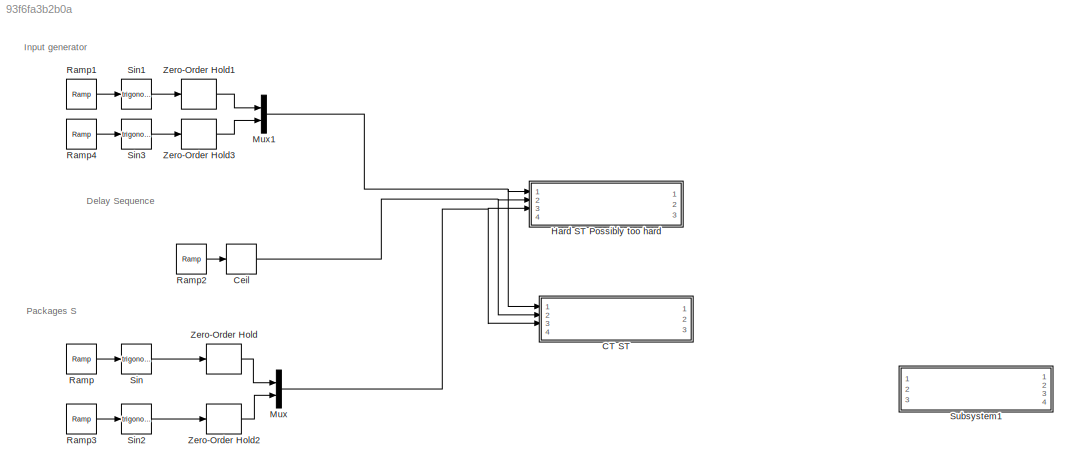
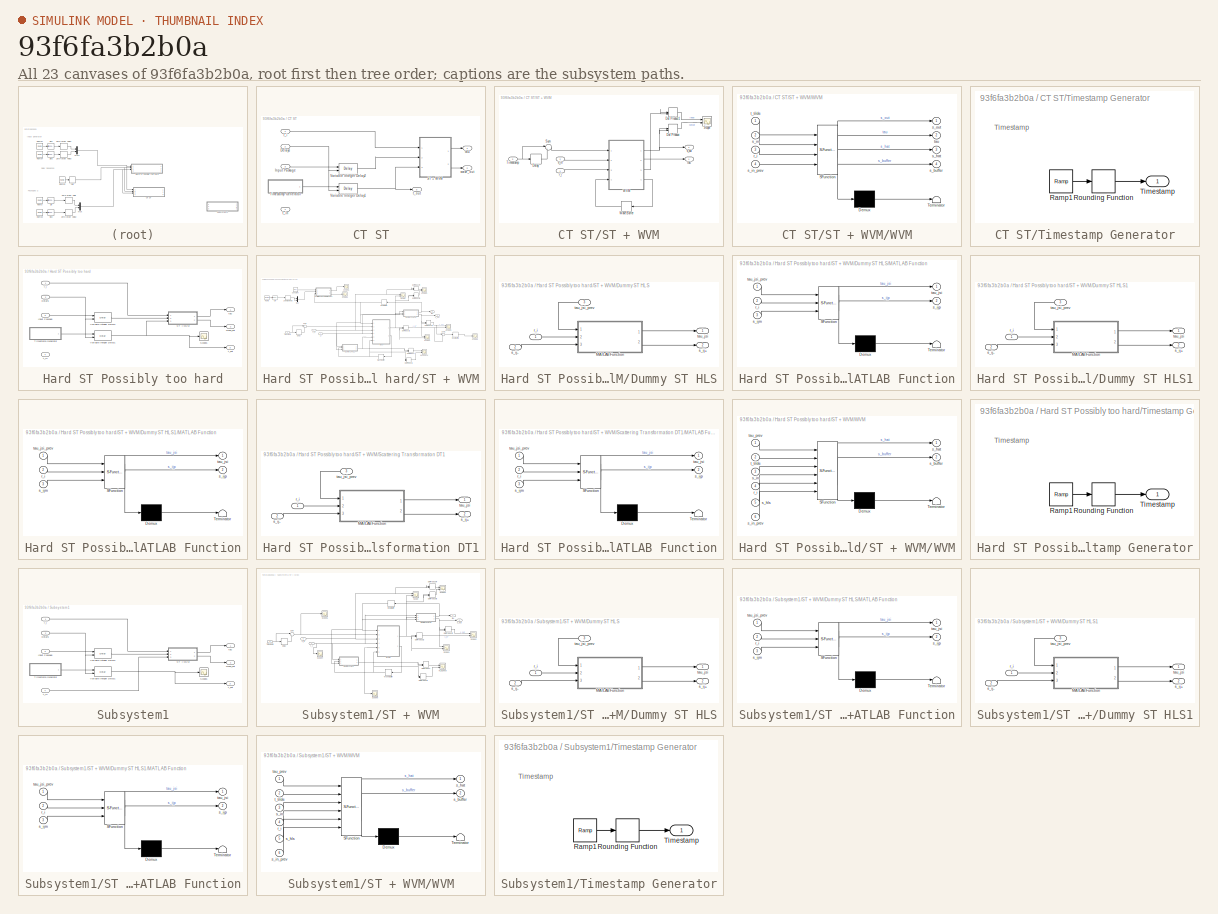
[diagram: thumbnail index - all 23 canvases of the model, root first then tree order]
MODEL slx_93f6fa3b2b0a
KIND model
CONFIG AbsTol = auto
CONFIG EnableMultiTasking = off
CONFIG FixedStep = auto
CONFIG MaxStep = auto
CONFIG MinStep = auto
CONFIG RelTol = 1e-3
CONFIG SampleTimeConstraint = Unconstrained
CONFIG Solver = VariableStepAuto
CONFIG SolverName = VariableStepAuto
CONFIG StartTime = 0.0
CONFIG StopTime = 10
BLOCK [SubSystem] CT ST
  Ports = [4, 3]
  RequestExecContextInheritance = off
BLOCK [Inport] CT ST/Delays
  IconDisplay = Port number
  Port = 2
BLOCK [Inport] CT ST/Input Package
  IconDisplay = Port number
  Port = 3
BLOCK [SubSystem] CT ST/ST + WVM
  Ports = [3, 2]
  RequestExecContextInheritance = off
  TreatAsAtomicUnit = on
BLOCK [Delay] CT ST/ST + WVM/Delay
  DelayLength = 1
  InputPortMap = u0
  Ports = [1, 1]
  SampleTime = Ts
BLOCK [DotProduct] CT ST/ST + WVM/Dot Product
  OutDataTypeStr = Inherit: Inherit via internal rule
BLOCK [DotProduct] CT ST/ST + WVM/Dot Product1
  OutDataTypeStr = Inherit: Inherit via internal rule
BLOCK [Scope] CT ST/ST + WVM/Scope
  Floating = off
  NumInputPorts = 2
  Ports = [2]
  ScopeSpecificationString = Simulink.scopes.TimeScopeBlockCfg('CurrentConfiguration', extmgr.ConfigurationSet(extmgr.Configuration('Core','General UI',true),extmgr.Configuration('Core','Source UI',true),extmgr.Configuration('Sources','WiredSimulink',true,'DataLoggingVariableName','ScopeData12'),extmgr.Configuration('Visuals','Time Domain',true,'SerializedDisplays',{struct('MinYLimReal','-0.18051','MaxYLimReal','1.62458','YLa...<+1401ch>
BLOCK [Sum] CT ST/ST + WVM/Sum
  IconShape = round
  InputSameDT = off
  Inputs = |+-
  OutDataTypeStr = Inherit: Inherit via internal rule
  Ports = [2, 1]
  SaturateOnIntegerOverflow = off
BLOCK [Inport] CT ST/ST + WVM/Timestamp
  IconDisplay = Port number
  Port = 3
BLOCK [SubSystem] CT ST/ST + WVM/WVM
  ErrorFcn = Stateflow.Translate.translate
  PermitHierarchicalResolution = ExplicitOnly
  Ports = [4, 4]
  RequestExecContextInheritance = off
  SFBlockType = MATLAB Function
  TreatAsAtomicUnit = on
BLOCK [Demux] CT ST/ST + WVM/WVM/ Demux 
  Outputs = 1
  Ports = [1, 1]
BLOCK [S-Function] CT ST/ST + WVM/WVM/ SFunction 
  EnableBusSupport = on
  FunctionName = sf_sfun
  Parameters = KL
  PortCounts = [4 5]
  Ports = [4, 5]
  SFcnIsStateOwnerBlock = off
  SFunctionDeploymentMode = off
  Tag = Stateflow S-Function Network_Standalone 11
BLOCK [Terminator] CT ST/ST + WVM/WVM/ Terminator 
BLOCK [Inport] CT ST/ST + WVM/WVM/r_i
  IconDisplay = Port number
  Port = 3
BLOCK [Outport] CT ST/ST + WVM/WVM/s_buffer
  IconDisplay = Port number
  Port = 4
BLOCK [Outport] CT ST/ST + WVM/WVM/s_hat
  IconDisplay = Port number
  Port = 3
BLOCK [Inport] CT ST/ST + WVM/WVM/s_in
  IconDisplay = Port number
  Port = 2
BLOCK [Inport] CT ST/ST + WVM/WVM/s_in_prev
  IconDisplay = Port number
  Port = 4
BLOCK [Outport] CT ST/ST + WVM/WVM/s_out
  IconDisplay = Port number
BLOCK [Inport] CT ST/ST + WVM/WVM/t_tilde
  IconDisplay = Port number
BLOCK [Outport] CT ST/ST + WVM/WVM/tau
  IconDisplay = Port number
  Port = 2
BLOCK [Delay] CT ST/ST + WVM/Wave Buffer
  DelayLength = 1
  InitialCondition = [0;0]
  InputPortMap = u0
  Ports = [1, 1]
  SampleTime = Ts
BLOCK [Inport] CT ST/ST + WVM/r_i
  IconDisplay = Port number
BLOCK [Inport] CT ST/ST + WVM/s_in
  IconDisplay = Port number
  Port = 2
BLOCK [Outport] CT ST/ST + WVM/s_out
  IconDisplay = Port number
  Port = 2
BLOCK [Outport] CT ST/ST + WVM/tau
  IconDisplay = Port number
BLOCK [SubSystem] CT ST/Timestamp Generator
  Ports = [0, 1]
  RequestExecContextInheritance = off
BLOCK [Reference] CT ST/Timestamp Generator/Ramp1  REF=simulink/Sources/Ramp
  Ports = [0, 1]
  SourceBlock = simulink/Sources/Ramp
  SourceProductBaseCode = SL
  SourceProductName = Simulink
  SourceType = Ramp
BLOCK [Rounding] CT ST/Timestamp Generator/Rounding Function
BLOCK [Outport] CT ST/Timestamp Generator/Timestamp
  IconDisplay = Port number
BLOCK [Delay] CT ST/Variable Integer Delay1
  DelayLengthSource = Input port
  InputPortMap = u0,p1
  Ports = [2, 1]
  PreventDirectFeedthrough = on
  SampleTime = Ts
BLOCK [Delay] CT ST/Variable Integer Delay2
  DelayLengthSource = Input port
  InputPortMap = u0,p1
  Ports = [2, 1]
  PreventDirectFeedthrough = on
  SampleTime = Ts
BLOCK [Inport] CT ST/r_i
  IconDisplay = Port number
BLOCK [Inport] CT ST/t_in
  IconDisplay = Port number
  Port = 4
BLOCK [Outport] CT ST/t_out
  IconDisplay = Port number
  Port = 3
BLOCK [Outport] CT ST/tau
  IconDisplay = Port number
BLOCK [Outport] CT ST/wave_out
  IconDisplay = Port number
  Port = 2
BLOCK [Rounding] Ceil
  Operator = ceil
BLOCK [SubSystem] Hard ST Possibly too hard
  Ports = [4, 3]
  RequestExecContextInheritance = off
BLOCK [Inport] Hard ST Possibly too hard/Delays
  IconDisplay = Port number
  Port = 2
BLOCK [Inport] Hard ST Possibly too hard/Input Package
  IconDisplay = Port number
  Port = 3
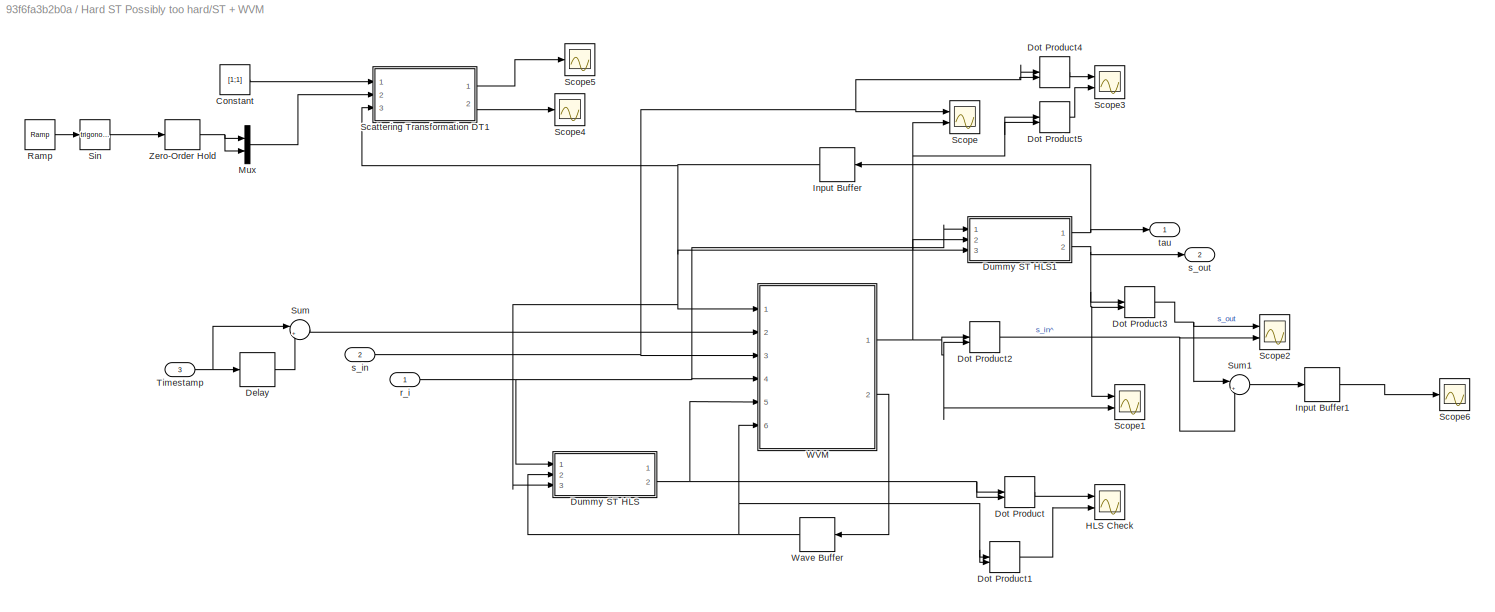
BLOCK [SubSystem] Hard ST Possibly too hard/ST + WVM
  Ports = [3, 2]
  RequestExecContextInheritance = off
  TreatAsAtomicUnit = on
BLOCK [Constant] Hard ST Possibly too hard/ST + WVM/Constant
  Value = [1;1]
BLOCK [Delay] Hard ST Possibly too hard/ST + WVM/Delay
  DelayLength = 1
  InputPortMap = u0
  Ports = [1, 1]
  SampleTime = Ts
BLOCK [DotProduct] Hard ST Possibly too hard/ST + WVM/Dot Product
  OutDataTypeStr = Inherit: Inherit via internal rule
BLOCK [DotProduct] Hard ST Possibly too hard/ST + WVM/Dot Product1
  OutDataTypeStr = Inherit: Inherit via internal rule
BLOCK [DotProduct] Hard ST Possibly too hard/ST + WVM/Dot Product2
  OutDataTypeStr = Inherit: Inherit via internal rule
BLOCK [DotProduct] Hard ST Possibly too hard/ST + WVM/Dot Product3
  OutDataTypeStr = Inherit: Inherit via internal rule
BLOCK [DotProduct] Hard ST Possibly too hard/ST + WVM/Dot Product4
  OutDataTypeStr = Inherit: Inherit via internal rule
BLOCK [DotProduct] Hard ST Possibly too hard/ST + WVM/Dot Product5
  OutDataTypeStr = Inherit: Inherit via internal rule
BLOCK [SubSystem] Hard ST Possibly too hard/ST + WVM/Dummy ST HLS
  Ports = [3, 2]
  RequestExecContextInheritance = off
BLOCK [SubSystem] Hard ST Possibly too hard/ST + WVM/Dummy ST HLS/MATLAB Function
  ErrorFcn = Stateflow.Translate.translate
  PermitHierarchicalResolution = ExplicitOnly
  Ports = [3, 2]
  RequestExecContextInheritance = off
  SFBlockType = MATLAB Function
  TreatAsAtomicUnit = on
BLOCK [Demux] Hard ST Possibly too hard/ST + WVM/Dummy ST HLS/MATLAB Function/ Demux 
  Outputs = 1
  Ports = [1, 1]
BLOCK [S-Function] Hard ST Possibly too hard/ST + WVM/Dummy ST HLS/MATLAB Function/ SFunction 
  EnableBusSupport = on
  FunctionName = sf_sfun
  Parameters = B,Kd
  PortCounts = [3 3]
  Ports = [3, 3]
  SFcnIsStateOwnerBlock = off
  SFunctionDeploymentMode = off
  Tag = Stateflow S-Function Network_Standalone 5
BLOCK [Terminator] Hard ST Possibly too hard/ST + WVM/Dummy ST HLS/MATLAB Function/ Terminator 
BLOCK [Inport] Hard ST Possibly too hard/ST + WVM/Dummy ST HLS/MATLAB Function/r_i
  IconDisplay = Port number
  Port = 2
BLOCK [Inport] Hard ST Possibly too hard/ST + WVM/Dummy ST HLS/MATLAB Function/s_ijm
  IconDisplay = Port number
  Port = 3
BLOCK [Outport] Hard ST Possibly too hard/ST + WVM/Dummy ST HLS/MATLAB Function/s_ijp
  IconDisplay = Port number
  Port = 2
BLOCK [Outport] Hard ST Possibly too hard/ST + WVM/Dummy ST HLS/MATLAB Function/tau_jsi
  IconDisplay = Port number
BLOCK [Inport] Hard ST Possibly too hard/ST + WVM/Dummy ST HLS/MATLAB Function/tau_jsi_prev
  IconDisplay = Port number
BLOCK [Inport] Hard ST Possibly too hard/ST + WVM/Dummy ST HLS/r_i
  IconDisplay = Port number
BLOCK [Outport] Hard ST Possibly too hard/ST + WVM/Dummy ST HLS/s_ij+
  IconDisplay = Port number
  Port = 2
BLOCK [Inport] Hard ST Possibly too hard/ST + WVM/Dummy ST HLS/s_ij-
  IconDisplay = Port number
  Port = 2
BLOCK [Outport] Hard ST Possibly too hard/ST + WVM/Dummy ST HLS/tau_jsi
  IconDisplay = Port number
BLOCK [Inport] Hard ST Possibly too hard/ST + WVM/Dummy ST HLS/tau_jsi_prev
  IconDisplay = Port number
  Port = 3
BLOCK [SubSystem] Hard ST Possibly too hard/ST + WVM/Dummy ST HLS1
  Ports = [3, 2]
  RequestExecContextInheritance = off
BLOCK [SubSystem] Hard ST Possibly too hard/ST + WVM/Dummy ST HLS1/MATLAB Function
  ErrorFcn = Stateflow.Translate.translate
  PermitHierarchicalResolution = ExplicitOnly
  Ports = [3, 2]
  RequestExecContextInheritance = off
  SFBlockType = MATLAB Function
  TreatAsAtomicUnit = on
BLOCK [Demux] Hard ST Possibly too hard/ST + WVM/Dummy ST HLS1/MATLAB Function/ Demux 
  Outputs = 1
  Ports = [1, 1]
BLOCK [S-Function] Hard ST Possibly too hard/ST + WVM/Dummy ST HLS1/MATLAB Function/ SFunction 
  EnableBusSupport = on
  FunctionName = sf_sfun
  Parameters = B,Kd
  PortCounts = [3 3]
  Ports = [3, 3]
  SFcnIsStateOwnerBlock = off
  SFunctionDeploymentMode = off
  Tag = Stateflow S-Function Network_Standalone 2
BLOCK [Terminator] Hard ST Possibly too hard/ST + WVM/Dummy ST HLS1/MATLAB Function/ Terminator 
BLOCK [Inport] Hard ST Possibly too hard/ST + WVM/Dummy ST HLS1/MATLAB Function/r_i
  IconDisplay = Port number
  Port = 2
BLOCK [Inport] Hard ST Possibly too hard/ST + WVM/Dummy ST HLS1/MATLAB Function/s_ijm
  IconDisplay = Port number
  Port = 3
BLOCK [Outport] Hard ST Possibly too hard/ST + WVM/Dummy ST HLS1/MATLAB Function/s_ijp
  IconDisplay = Port number
  Port = 2
BLOCK [Outport] Hard ST Possibly too hard/ST + WVM/Dummy ST HLS1/MATLAB Function/tau_jsi
  IconDisplay = Port number
BLOCK [Inport] Hard ST Possibly too hard/ST + WVM/Dummy ST HLS1/MATLAB Function/tau_jsi_prev
  IconDisplay = Port number
BLOCK [Inport] Hard ST Possibly too hard/ST + WVM/Dummy ST HLS1/r_i
  IconDisplay = Port number
BLOCK [Outport] Hard ST Possibly too hard/ST + WVM/Dummy ST HLS1/s_ij+
  IconDisplay = Port number
  Port = 2
BLOCK [Inport] Hard ST Possibly too hard/ST + WVM/Dummy ST HLS1/s_ij-
  IconDisplay = Port number
  Port = 2
BLOCK [Outport] Hard ST Possibly too hard/ST + WVM/Dummy ST HLS1/tau_jsi
  IconDisplay = Port number
BLOCK [Inport] Hard ST Possibly too hard/ST + WVM/Dummy ST HLS1/tau_jsi_prev
  IconDisplay = Port number
  Port = 3
BLOCK [Scope] Hard ST Possibly too hard/ST + WVM/HLS Check
  Floating = off
  NumInputPorts = 2
  Ports = [2]
  ScopeSpecificationString = Simulink.scopes.TimeScopeBlockCfg('CurrentConfiguration', extmgr.ConfigurationSet(extmgr.Configuration('Core','General UI',true),extmgr.Configuration('Core','Source UI',true),extmgr.Configuration('Sources','WiredSimulink',true,'DataLoggingVariableName','ScopeData2'),extmgr.Configuration('Visuals','Time Domain',true,'SerializedDisplays',{struct('MinYLimReal','-0.93692','MaxYLimReal','8.43227','YLab...<+1504ch>
BLOCK [Delay] Hard ST Possibly too hard/ST + WVM/Input Buffer
  DelayLength = 1
  InitialCondition = [0;0]
  InputPortMap = u0
  Ports = [1, 1]
  SampleTime = Ts
BLOCK [Delay] Hard ST Possibly too hard/ST + WVM/Input Buffer1
  DelayLength = 1
  InitialCondition = [0;0]
  InputPortMap = u0
  Ports = [1, 1]
  SampleTime = Ts
BLOCK [Mux] Hard ST Possibly too hard/ST + WVM/Mux
  DisplayOption = bar
  Inputs = 2
  Ports = [2, 1]
BLOCK [Reference] Hard ST Possibly too hard/ST + WVM/Ramp  REF=simulink/Sources/Ramp
  Ports = [0, 1]
  SourceBlock = simulink/Sources/Ramp
  SourceProductBaseCode = SL
  SourceProductName = Simulink
  SourceType = Ramp
BLOCK [SubSystem] Hard ST Possibly too hard/ST + WVM/Scattering Transformation DT1
  Ports = [3, 2]
  RequestExecContextInheritance = off
BLOCK [SubSystem] Hard ST Possibly too hard/ST + WVM/Scattering Transformation DT1/MATLAB Function
  ErrorFcn = Stateflow.Translate.translate
  PermitHierarchicalResolution = ExplicitOnly
  Ports = [3, 2]
  RequestExecContextInheritance = off
  SFBlockType = MATLAB Function
  TreatAsAtomicUnit = on
BLOCK [Demux] Hard ST Possibly too hard/ST + WVM/Scattering Transformation DT1/MATLAB Function/ Demux 
  Outputs = 1
  Ports = [1, 1]
BLOCK [S-Function] Hard ST Possibly too hard/ST + WVM/Scattering Transformation DT1/MATLAB Function/ SFunction 
  EnableBusSupport = on
  FunctionName = sf_sfun
  Parameters = B,Kd
  PortCounts = [3 3]
  Ports = [3, 3]
  SFcnIsStateOwnerBlock = off
  SFunctionDeploymentMode = off
  Tag = Stateflow S-Function Network_Standalone 1
BLOCK [Terminator] Hard ST Possibly too hard/ST + WVM/Scattering Transformation DT1/MATLAB Function/ Terminator 
BLOCK [Inport] Hard ST Possibly too hard/ST + WVM/Scattering Transformation DT1/MATLAB Function/r_i
  IconDisplay = Port number
  Port = 2
BLOCK [Inport] Hard ST Possibly too hard/ST + WVM/Scattering Transformation DT1/MATLAB Function/s_ijm
  IconDisplay = Port number
  Port = 3
BLOCK [Outport] Hard ST Possibly too hard/ST + WVM/Scattering Transformation DT1/MATLAB Function/s_ijp
  IconDisplay = Port number
  Port = 2
BLOCK [Outport] Hard ST Possibly too hard/ST + WVM/Scattering Transformation DT1/MATLAB Function/tau_jsi
  IconDisplay = Port number
BLOCK [Inport] Hard ST Possibly too hard/ST + WVM/Scattering Transformation DT1/MATLAB Function/tau_jsi_prev
  IconDisplay = Port number
BLOCK [Inport] Hard ST Possibly too hard/ST + WVM/Scattering Transformation DT1/r_i
  IconDisplay = Port number
BLOCK [Outport] Hard ST Possibly too hard/ST + WVM/Scattering Transformation DT1/s_ij+
  IconDisplay = Port number
  Port = 2
BLOCK [Inport] Hard ST Possibly too hard/ST + WVM/Scattering Transformation DT1/s_ij-
  IconDisplay = Port number
  Port = 2
BLOCK [Outport] Hard ST Possibly too hard/ST + WVM/Scattering Transformation DT1/tau_jsi
  IconDisplay = Port number
BLOCK [Inport] Hard ST Possibly too hard/ST + WVM/Scattering Transformation DT1/tau_jsi_prev
  IconDisplay = Port number
  Port = 3
BLOCK [Scope] Hard ST Possibly too hard/ST + WVM/Scope
  Floating = off
  NumInputPorts = 2
  Ports = [2]
  ScopeSpecificationString = Simulink.scopes.TimeScopeBlockCfg('CurrentConfiguration', extmgr.ConfigurationSet(extmgr.Configuration('Core','General UI',true),extmgr.Configuration('Core','Source UI',true),extmgr.Configuration('Sources','WiredSimulink',true,'DataLoggingVariableName','ScopeData1'),extmgr.Configuration('Visuals','Time Domain',true,'SerializedDisplays',{struct('MinYLimReal','-1.24986','MaxYLimReal','1.24951','YLab...<+1520ch>
BLOCK [Scope] Hard ST Possibly too hard/ST + WVM/Scope1
  Floating = off
  NumInputPorts = 2
  Ports = [2]
  ScopeSpecificationString = Simulink.scopes.TimeScopeBlockCfg('CurrentConfiguration', extmgr.ConfigurationSet(extmgr.Configuration('Core','General UI',true),extmgr.Configuration('Core','Source UI',true),extmgr.Configuration('Sources','WiredSimulink',true,'DataLoggingVariableName','ScopeData7'),extmgr.Configuration('Visuals','Time Domain',true,'SerializedDisplays',{struct('MinYLimReal','-3.20938','MaxYLimReal','3.36311','YLab...<+1550ch>
BLOCK [Scope] Hard ST Possibly too hard/ST + WVM/Scope2
  Floating = off
  NumInputPorts = 2
  Ports = [2]
  ScopeSpecificationString = Simulink.scopes.TimeScopeBlockCfg('CurrentConfiguration', extmgr.ConfigurationSet(extmgr.Configuration('Core','General UI',true),extmgr.Configuration('Core','Source UI',true),extmgr.Configuration('Sources','WiredSimulink',true,'DataLoggingVariableName','ScopeData3'),extmgr.Configuration('Visuals','Time Domain',true,'SerializedDisplays',{struct('MinYLimReal','-0.9159','MaxYLimReal','8.24309','YLabe...<+1489ch>
BLOCK [Scope] Hard ST Possibly too hard/ST + WVM/Scope3
  Floating = off
  NumInputPorts = 2
  Ports = [2]
  ScopeSpecificationString = Simulink.scopes.TimeScopeBlockCfg('CurrentConfiguration', extmgr.ConfigurationSet(extmgr.Configuration('Core','General UI',true),extmgr.Configuration('Core','Source UI',true),extmgr.Configuration('Sources','WiredSimulink',true,'DataLoggingVariableName','ScopeData4'),extmgr.Configuration('Visuals','Time Domain',true,'SerializedDisplays',{struct('MinYLimReal','-0.18051','MaxYLimReal','1.62458','YLab...<+1504ch>
BLOCK [Scope] Hard ST Possibly too hard/ST + WVM/Scope4
  Floating = off
  NumInputPorts = 1
  Ports = [1]
  ScopeSpecificationString = Simulink.scopes.TimeScopeBlockCfg('CurrentConfiguration', extmgr.ConfigurationSet(extmgr.Configuration('Core','General UI',true),extmgr.Configuration('Core','Source UI',true),extmgr.Configuration('Sources','WiredSimulink',true,'DataLoggingVariableName','ScopeData5'),extmgr.Configuration('Visuals','Time Domain',true,'SerializedDisplays',{struct('MinYLimReal','0.60711','MaxYLimReal','0.80711','YLabe...<+1466ch>
BLOCK [Scope] Hard ST Possibly too hard/ST + WVM/Scope5
  Floating = off
  NumInputPorts = 1
  Ports = [1]
  ScopeSpecificationString = Simulink.scopes.TimeScopeBlockCfg('CurrentConfiguration', extmgr.ConfigurationSet(extmgr.Configuration('Core','General UI',true),extmgr.Configuration('Core','Source UI',true),extmgr.Configuration('Sources','WiredSimulink',true,'DataLoggingVariableName','ScopeData6'),extmgr.Configuration('Visuals','Time Domain',true,'SerializedDisplays',{struct('MinYLimReal','-4.74232','MaxYLimReal','2.31355','YLab...<+1440ch>
BLOCK [Scope] Hard ST Possibly too hard/ST + WVM/Scope6
  Floating = off
  NumInputPorts = 1
  Ports = [1]
  ScopeSpecificationString = Simulink.scopes.TimeScopeBlockCfg('CurrentConfiguration', extmgr.ConfigurationSet(extmgr.Configuration('Core','General UI',true),extmgr.Configuration('Core','Source UI',true),extmgr.Configuration('Sources','WiredSimulink',true,'DataLoggingVariableName','ScopeData8'),extmgr.Configuration('Visuals','Time Domain',true,'SerializedDisplays',{struct('MinYLimReal','-0.96865','MaxYLimReal','7.03239','YLab...<+1440ch>
BLOCK [Trigonometry] Hard ST Possibly too hard/ST + WVM/Sin
  Ports = [1, 1]
BLOCK [Sum] Hard ST Possibly too hard/ST + WVM/Sum
  IconShape = round
  InputSameDT = off
  Inputs = |+-
  OutDataTypeStr = Inherit: Inherit via internal rule
  Ports = [2, 1]
  SaturateOnIntegerOverflow = off
BLOCK [Sum] Hard ST Possibly too hard/ST + WVM/Sum1
  IconShape = round
  InputSameDT = off
  Inputs = |+-
  OutDataTypeStr = Inherit: Inherit via internal rule
  Ports = [2, 1]
  SaturateOnIntegerOverflow = off
BLOCK [Inport] Hard ST Possibly too hard/ST + WVM/Timestamp
  IconDisplay = Port number
  Port = 3
BLOCK [SubSystem] Hard ST Possibly too hard/ST + WVM/WVM
  ErrorFcn = Stateflow.Translate.translate
  PermitHierarchicalResolution = ExplicitOnly
  Ports = [6, 2]
  RequestExecContextInheritance = off
  SFBlockType = MATLAB Function
  TreatAsAtomicUnit = on
BLOCK [Demux] Hard ST Possibly too hard/ST + WVM/WVM/ Demux 
  Outputs = 1
  Ports = [1, 1]
BLOCK [S-Function] Hard ST Possibly too hard/ST + WVM/WVM/ SFunction 
  EnableBusSupport = on
  FunctionName = sf_sfun
  PortCounts = [6 3]
  Ports = [6, 3]
  SFcnIsStateOwnerBlock = off
  SFunctionDeploymentMode = off
  Tag = Stateflow S-Function Network_Standalone 4
BLOCK [Terminator] Hard ST Possibly too hard/ST + WVM/WVM/ Terminator 
BLOCK [Inport] Hard ST Possibly too hard/ST + WVM/WVM/r_i
  IconDisplay = Port number
  Port = 4
BLOCK [Outport] Hard ST Possibly too hard/ST + WVM/WVM/s_buffer
  IconDisplay = Port number
  Port = 2
BLOCK [Outport] Hard ST Possibly too hard/ST + WVM/WVM/s_hat
  IconDisplay = Port number
BLOCK [Inport] Hard ST Possibly too hard/ST + WVM/WVM/s_hls
  IconDisplay = Port number
  Port = 5
BLOCK [Inport] Hard ST Possibly too hard/ST + WVM/WVM/s_in
  IconDisplay = Port number
  Port = 3
BLOCK [Inport] Hard ST Possibly too hard/ST + WVM/WVM/s_in_prev
  IconDisplay = Port number
  Port = 6
BLOCK [Inport] Hard ST Possibly too hard/ST + WVM/WVM/t_tilde
  IconDisplay = Port number
  Port = 2
BLOCK [Inport] Hard ST Possibly too hard/ST + WVM/WVM/tau_prev
  IconDisplay = Port number
BLOCK [Delay] Hard ST Possibly too hard/ST + WVM/Wave Buffer
  DelayLength = 1
  InitialCondition = [0;0]
  InputPortMap = u0
  Ports = [1, 1]
  SampleTime = Ts
BLOCK [ZeroOrderHold] Hard ST Possibly too hard/ST + WVM/Zero-Order Hold
  SampleTime = Ts
BLOCK [Inport] Hard ST Possibly too hard/ST + WVM/r_i
  IconDisplay = Port number
BLOCK [Inport] Hard ST Possibly too hard/ST + WVM/s_in
  IconDisplay = Port number
  Port = 2
BLOCK [Outport] Hard ST Possibly too hard/ST + WVM/s_out
  IconDisplay = Port number
  Port = 2
BLOCK [Outport] Hard ST Possibly too hard/ST + WVM/tau
  IconDisplay = Port number
BLOCK [Scope] Hard ST Possibly too hard/Scope1
  Floating = off
  NumInputPorts = 1
  Ports = [1]
  ScopeSpecificationString = Simulink.scopes.TimeScopeBlockCfg('CurrentConfiguration', extmgr.ConfigurationSet(extmgr.Configuration('Core','General UI',true),extmgr.Configuration('Core','Source UI',true),extmgr.Configuration('Sources','WiredSimulink',true,'DataLoggingVariableName','ScopeData2'),extmgr.Configuration('Visuals','Time Domain',true,'SerializedDisplays',{struct('MinYLimReal','-8.125','MaxYLimReal','73.125','YLabelR...<+1403ch>
BLOCK [SubSystem] Hard ST Possibly too hard/Timestamp Generator
  Ports = [0, 1]
  RequestExecContextInheritance = off
BLOCK [Reference] Hard ST Possibly too hard/Timestamp Generator/Ramp1  REF=simulink/Sources/Ramp
  Ports = [0, 1]
  SourceBlock = simulink/Sources/Ramp
  SourceProductBaseCode = SL
  SourceProductName = Simulink
  SourceType = Ramp
BLOCK [Rounding] Hard ST Possibly too hard/Timestamp Generator/Rounding Function
BLOCK [Outport] Hard ST Possibly too hard/Timestamp Generator/Timestamp
  IconDisplay = Port number
BLOCK [Delay] Hard ST Possibly too hard/Variable Integer Delay1
  DelayLengthSource = Input port
  InputPortMap = u0,p1
  Ports = [2, 1]
  PreventDirectFeedthrough = on
  SampleTime = Ts
BLOCK [Delay] Hard ST Possibly too hard/Variable Integer Delay2
  DelayLengthSource = Input port
  InputPortMap = u0,p1
  Ports = [2, 1]
  PreventDirectFeedthrough = on
  SampleTime = Ts
BLOCK [Inport] Hard ST Possibly too hard/r_i
  IconDisplay = Port number
BLOCK [Inport] Hard ST Possibly too hard/t_in
  IconDisplay = Port number
  Port = 4
BLOCK [Outport] Hard ST Possibly too hard/t_out
  IconDisplay = Port number
  Port = 3
BLOCK [Outport] Hard ST Possibly too hard/tau
  IconDisplay = Port number
BLOCK [Outport] Hard ST Possibly too hard/wave_out
  IconDisplay = Port number
  Port = 2
BLOCK [Mux] Mux
  DisplayOption = bar
  Inputs = 2
  Ports = [2, 1]
BLOCK [Mux] Mux1
  DisplayOption = bar
  Inputs = 2
  Ports = [2, 1]
BLOCK [Reference] Ramp  REF=simulink/Sources/Ramp
  Ports = [0, 1]
  SourceBlock = simulink/Sources/Ramp
  SourceProductBaseCode = SL
  SourceProductName = Simulink
  SourceType = Ramp
BLOCK [Reference] Ramp1  REF=simulink/Sources/Ramp
  Ports = [0, 1]
  SourceBlock = simulink/Sources/Ramp
  SourceProductBaseCode = SL
  SourceProductName = Simulink
  SourceType = Ramp
BLOCK [Reference] Ramp2  REF=simulink/Sources/Ramp
  Ports = [0, 1]
  SourceBlock = simulink/Sources/Ramp
  SourceProductBaseCode = SL
  SourceProductName = Simulink
  SourceType = Ramp
BLOCK [Reference] Ramp3  REF=simulink/Sources/Ramp
  Ports = [0, 1]
  SourceBlock = simulink/Sources/Ramp
  SourceProductBaseCode = SL
  SourceProductName = Simulink
  SourceType = Ramp
BLOCK [Reference] Ramp4  REF=simulink/Sources/Ramp
  Ports = [0, 1]
  SourceBlock = simulink/Sources/Ramp
  SourceProductBaseCode = SL
  SourceProductName = Simulink
  SourceType = Ramp
BLOCK [Trigonometry] Sin
  Ports = [1, 1]
BLOCK [Trigonometry] Sin1
  Ports = [1, 1]
BLOCK [Trigonometry] Sin2
  Ports = [1, 1]
BLOCK [Trigonometry] Sin3
  Ports = [1, 1]
BLOCK [SubSystem] Subsystem1
  Commented = on
  Ports = [4, 3]
  RequestExecContextInheritance = off
BLOCK [Inport] Subsystem1/Delays
  IconDisplay = Port number
  Port = 2
BLOCK [Inport] Subsystem1/Input Package
  IconDisplay = Port number
  Port = 3
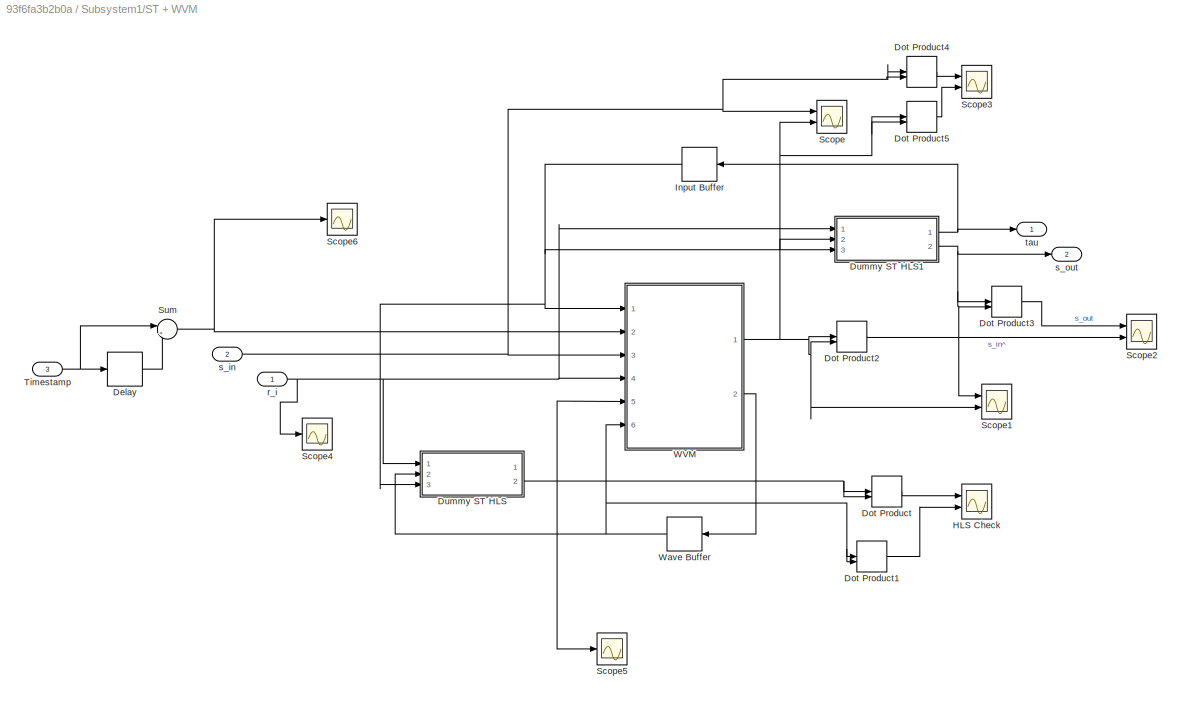
BLOCK [SubSystem] Subsystem1/ST + WVM
  Ports = [3, 2]
  RequestExecContextInheritance = off
  TreatAsAtomicUnit = on
BLOCK [Delay] Subsystem1/ST + WVM/Delay
  DelayLength = 1
  InputPortMap = u0
  Ports = [1, 1]
  SampleTime = Ts
BLOCK [DotProduct] Subsystem1/ST + WVM/Dot Product
  OutDataTypeStr = Inherit: Inherit via internal rule
BLOCK [DotProduct] Subsystem1/ST + WVM/Dot Product1
  OutDataTypeStr = Inherit: Inherit via internal rule
BLOCK [DotProduct] Subsystem1/ST + WVM/Dot Product2
  OutDataTypeStr = Inherit: Inherit via internal rule
BLOCK [DotProduct] Subsystem1/ST + WVM/Dot Product3
  OutDataTypeStr = Inherit: Inherit via internal rule
BLOCK [DotProduct] Subsystem1/ST + WVM/Dot Product4
  OutDataTypeStr = Inherit: Inherit via internal rule
BLOCK [DotProduct] Subsystem1/ST + WVM/Dot Product5
  OutDataTypeStr = Inherit: Inherit via internal rule
BLOCK [SubSystem] Subsystem1/ST + WVM/Dummy ST HLS
  Ports = [3, 2]
  RequestExecContextInheritance = off
BLOCK [SubSystem] Subsystem1/ST + WVM/Dummy ST HLS/MATLAB Function
  ErrorFcn = Stateflow.Translate.translate
  PermitHierarchicalResolution = ExplicitOnly
  Ports = [3, 2]
  RequestExecContextInheritance = off
  SFBlockType = MATLAB Function
  TreatAsAtomicUnit = on
BLOCK [Demux] Subsystem1/ST + WVM/Dummy ST HLS/MATLAB Function/ Demux 
  Outputs = 1
  Ports = [1, 1]
BLOCK [S-Function] Subsystem1/ST + WVM/Dummy ST HLS/MATLAB Function/ SFunction 
  EnableBusSupport = on
  FunctionName = sf_sfun
  Parameters = B,Kd
  PortCounts = [3 3]
  Ports = [3, 3]
  SFcnIsStateOwnerBlock = off
  SFunctionDeploymentMode = off
  Tag = Stateflow S-Function Network_Standalone 7
BLOCK [Terminator] Subsystem1/ST + WVM/Dummy ST HLS/MATLAB Function/ Terminator 
BLOCK [Inport] Subsystem1/ST + WVM/Dummy ST HLS/MATLAB Function/r_i
  IconDisplay = Port number
  Port = 2
BLOCK [Inport] Subsystem1/ST + WVM/Dummy ST HLS/MATLAB Function/s_ijm
  IconDisplay = Port number
  Port = 3
BLOCK [Outport] Subsystem1/ST + WVM/Dummy ST HLS/MATLAB Function/s_ijp
  IconDisplay = Port number
  Port = 2
BLOCK [Outport] Subsystem1/ST + WVM/Dummy ST HLS/MATLAB Function/tau_jsi
  IconDisplay = Port number
BLOCK [Inport] Subsystem1/ST + WVM/Dummy ST HLS/MATLAB Function/tau_jsi_prev
  IconDisplay = Port number
BLOCK [Inport] Subsystem1/ST + WVM/Dummy ST HLS/r_i
  IconDisplay = Port number
BLOCK [Outport] Subsystem1/ST + WVM/Dummy ST HLS/s_ij+
  IconDisplay = Port number
  Port = 2
BLOCK [Inport] Subsystem1/ST + WVM/Dummy ST HLS/s_ij-
  IconDisplay = Port number
  Port = 2
BLOCK [Outport] Subsystem1/ST + WVM/Dummy ST HLS/tau_jsi
  IconDisplay = Port number
BLOCK [Inport] Subsystem1/ST + WVM/Dummy ST HLS/tau_jsi_prev
  IconDisplay = Port number
  Port = 3
BLOCK [SubSystem] Subsystem1/ST + WVM/Dummy ST HLS1
  Ports = [3, 2]
  RequestExecContextInheritance = off
BLOCK [SubSystem] Subsystem1/ST + WVM/Dummy ST HLS1/MATLAB Function
  ErrorFcn = Stateflow.Translate.translate
  PermitHierarchicalResolution = ExplicitOnly
  Ports = [3, 2]
  RequestExecContextInheritance = off
  SFBlockType = MATLAB Function
  TreatAsAtomicUnit = on
BLOCK [Demux] Subsystem1/ST + WVM/Dummy ST HLS1/MATLAB Function/ Demux 
  Outputs = 1
  Ports = [1, 1]
BLOCK [S-Function] Subsystem1/ST + WVM/Dummy ST HLS1/MATLAB Function/ SFunction 
  EnableBusSupport = on
  FunctionName = sf_sfun
  Parameters = B,Kd
  PortCounts = [3 3]
  Ports = [3, 3]
  SFcnIsStateOwnerBlock = off
  SFunctionDeploymentMode = off
  Tag = Stateflow S-Function Network_Standalone 9
BLOCK [Terminator] Subsystem1/ST + WVM/Dummy ST HLS1/MATLAB Function/ Terminator 
BLOCK [Inport] Subsystem1/ST + WVM/Dummy ST HLS1/MATLAB Function/r_i
  IconDisplay = Port number
  Port = 2
BLOCK [Inport] Subsystem1/ST + WVM/Dummy ST HLS1/MATLAB Function/s_ijm
  IconDisplay = Port number
  Port = 3
BLOCK [Outport] Subsystem1/ST + WVM/Dummy ST HLS1/MATLAB Function/s_ijp
  IconDisplay = Port number
  Port = 2
BLOCK [Outport] Subsystem1/ST + WVM/Dummy ST HLS1/MATLAB Function/tau_jsi
  IconDisplay = Port number
BLOCK [Inport] Subsystem1/ST + WVM/Dummy ST HLS1/MATLAB Function/tau_jsi_prev
  IconDisplay = Port number
BLOCK [Inport] Subsystem1/ST + WVM/Dummy ST HLS1/r_i
  IconDisplay = Port number
BLOCK [Outport] Subsystem1/ST + WVM/Dummy ST HLS1/s_ij+
  IconDisplay = Port number
  Port = 2
BLOCK [Inport] Subsystem1/ST + WVM/Dummy ST HLS1/s_ij-
  IconDisplay = Port number
  Port = 2
BLOCK [Outport] Subsystem1/ST + WVM/Dummy ST HLS1/tau_jsi
  IconDisplay = Port number
BLOCK [Inport] Subsystem1/ST + WVM/Dummy ST HLS1/tau_jsi_prev
  IconDisplay = Port number
  Port = 3
BLOCK [Scope] Subsystem1/ST + WVM/HLS Check
  Floating = off
  NumInputPorts = 2
  Ports = [2]
  ScopeSpecificationString = Simulink.scopes.TimeScopeBlockCfg('CurrentConfiguration', extmgr.ConfigurationSet(extmgr.Configuration('Core','General UI',true),extmgr.Configuration('Core','Source UI',true),extmgr.Configuration('Sources','WiredSimulink',true,'DataLoggingVariableName','ScopeData2'),extmgr.Configuration('Visuals','Time Domain',true,'SerializedDisplays',{struct('MinYLimReal','-0.09765','MaxYLimReal','0.87888','YLab...<+1504ch>
BLOCK [Delay] Subsystem1/ST + WVM/Input Buffer
  DelayLength = 1
  InitialCondition = [0;0]
  InputPortMap = u0
  Ports = [1, 1]
  SampleTime = Ts
BLOCK [Scope] Subsystem1/ST + WVM/Scope
  Floating = off
  NumInputPorts = 2
  Ports = [2]
  ScopeSpecificationString = Simulink.scopes.TimeScopeBlockCfg('CurrentConfiguration', extmgr.ConfigurationSet(extmgr.Configuration('Core','General UI',true),extmgr.Configuration('Core','Source UI',true),extmgr.Configuration('Sources','WiredSimulink',true,'DataLoggingVariableName','ScopeData1'),extmgr.Configuration('Visuals','Time Domain',true,'SerializedDisplays',{struct('MinYLimReal','-0.8838','MaxYLimReal','0.8837','YLabel...<+1514ch>
BLOCK [Scope] Subsystem1/ST + WVM/Scope1
  Floating = off
  NumInputPorts = 2
  Ports = [2]
  ScopeSpecificationString = Simulink.scopes.TimeScopeBlockCfg('CurrentConfiguration', extmgr.ConfigurationSet(extmgr.Configuration('Core','General UI',true),extmgr.Configuration('Core','Source UI',true),extmgr.Configuration('Sources','WiredSimulink',true,'DataLoggingVariableName','ScopeData7'),extmgr.Configuration('Visuals','Time Domain',true,'SerializedDisplays',{struct('MinYLimReal','-0.88382','MaxYLimReal','0.88382','YLab...<+1550ch>
BLOCK [Scope] Subsystem1/ST + WVM/Scope2
  Floating = off
  NumInputPorts = 2
  Ports = [2]
  ScopeSpecificationString = Simulink.scopes.TimeScopeBlockCfg('CurrentConfiguration', extmgr.ConfigurationSet(extmgr.Configuration('Core','General UI',true),extmgr.Configuration('Core','Source UI',true),extmgr.Configuration('Sources','WiredSimulink',true,'DataLoggingVariableName','ScopeData3'),extmgr.Configuration('Visuals','Time Domain',true,'SerializedDisplays',{struct('MinYLimReal','-0.09765','MaxYLimReal','0.87888','YLab...<+1491ch>
BLOCK [Scope] Subsystem1/ST + WVM/Scope3
  Floating = off
  NumInputPorts = 2
  Ports = [2]
  ScopeSpecificationString = Simulink.scopes.TimeScopeBlockCfg('CurrentConfiguration', extmgr.ConfigurationSet(extmgr.Configuration('Core','General UI',true),extmgr.Configuration('Core','Source UI',true),extmgr.Configuration('Sources','WiredSimulink',true,'DataLoggingVariableName','ScopeData4'),extmgr.Configuration('Visuals','Time Domain',true,'SerializedDisplays',{struct('MinYLimReal','-0.09762','MaxYLimReal','0.87861','YLab...<+1504ch>
BLOCK [Scope] Subsystem1/ST + WVM/Scope4
  Floating = off
  NumInputPorts = 1
  Ports = [1]
  ScopeSpecificationString = Simulink.scopes.TimeScopeBlockCfg('CurrentConfiguration', extmgr.ConfigurationSet(extmgr.Configuration('Core','General UI',true),extmgr.Configuration('Core','Source UI',true),extmgr.Configuration('Sources','WiredSimulink',true,'DataLoggingVariableName','ScopeData9'),extmgr.Configuration('Visuals','Time Domain',true,'SerializedDisplays',{struct('MinYLimReal','-1.24989','MaxYLimReal','1.24975','YLab...<+1401ch>
BLOCK [Scope] Subsystem1/ST + WVM/Scope5
  Floating = off
  NumInputPorts = 1
  Ports = [1]
  ScopeSpecificationString = Simulink.scopes.TimeScopeBlockCfg('CurrentConfiguration', extmgr.ConfigurationSet(extmgr.Configuration('Core','General UI',true),extmgr.Configuration('Core','Source UI',true),extmgr.Configuration('Sources','WiredSimulink',true,'DataLoggingVariableName','ScopeData10'),extmgr.Configuration('Visuals','Time Domain',true,'SerializedDisplays',{struct('MinYLimReal','-0.8837','MaxYLimReal','0.8838','YLabe...<+1426ch>
BLOCK [Scope] Subsystem1/ST + WVM/Scope6
  Floating = off
  NumInputPorts = 1
  Ports = [1]
  ScopeSpecificationString = Simulink.scopes.TimeScopeBlockCfg('CurrentConfiguration', extmgr.ConfigurationSet(extmgr.Configuration('Core','General UI',true),extmgr.Configuration('Core','Source UI',true),extmgr.Configuration('Sources','WiredSimulink',true,'DataLoggingVariableName','ScopeData11'),extmgr.Configuration('Visuals','Time Domain',true,'SerializedDisplays',{struct('MinYLimReal','-0.125','MaxYLimReal','1.125','YLabelR...<+1380ch>
BLOCK [Sum] Subsystem1/ST + WVM/Sum
  IconShape = round
  InputSameDT = off
  Inputs = |+-
  OutDataTypeStr = Inherit: Inherit via internal rule
  Ports = [2, 1]
  SaturateOnIntegerOverflow = off
BLOCK [Inport] Subsystem1/ST + WVM/Timestamp
  IconDisplay = Port number
  Port = 3
BLOCK [SubSystem] Subsystem1/ST + WVM/WVM
  ErrorFcn = Stateflow.Translate.translate
  PermitHierarchicalResolution = ExplicitOnly
  Ports = [6, 2]
  RequestExecContextInheritance = off
  SFBlockType = MATLAB Function
  TreatAsAtomicUnit = on
BLOCK [Demux] Subsystem1/ST + WVM/WVM/ Demux 
  Outputs = 1
  Ports = [1, 1]
BLOCK [S-Function] Subsystem1/ST + WVM/WVM/ SFunction 
  EnableBusSupport = on
  FunctionName = sf_sfun
  PortCounts = [6 3]
  Ports = [6, 3]
  SFcnIsStateOwnerBlock = off
  SFunctionDeploymentMode = off
  Tag = Stateflow S-Function Network_Standalone 10
BLOCK [Terminator] Subsystem1/ST + WVM/WVM/ Terminator 
BLOCK [Inport] Subsystem1/ST + WVM/WVM/r_i
  IconDisplay = Port number
  Port = 4
BLOCK [Outport] Subsystem1/ST + WVM/WVM/s_buffer
  IconDisplay = Port number
  Port = 2
BLOCK [Outport] Subsystem1/ST + WVM/WVM/s_hat
  IconDisplay = Port number
BLOCK [Inport] Subsystem1/ST + WVM/WVM/s_hls
  IconDisplay = Port number
  Port = 5
BLOCK [Inport] Subsystem1/ST + WVM/WVM/s_in
  IconDisplay = Port number
  Port = 3
BLOCK [Inport] Subsystem1/ST + WVM/WVM/s_in_prev
  IconDisplay = Port number
  Port = 6
BLOCK [Inport] Subsystem1/ST + WVM/WVM/t_tilde
  IconDisplay = Port number
  Port = 2
BLOCK [Inport] Subsystem1/ST + WVM/WVM/tau_prev
  IconDisplay = Port number
BLOCK [Delay] Subsystem1/ST + WVM/Wave Buffer
  DelayLength = 1
  InitialCondition = [0;0]
  InputPortMap = u0
  Ports = [1, 1]
  SampleTime = Ts
BLOCK [Inport] Subsystem1/ST + WVM/r_i
  IconDisplay = Port number
BLOCK [Inport] Subsystem1/ST + WVM/s_in
  IconDisplay = Port number
  Port = 2
BLOCK [Outport] Subsystem1/ST + WVM/s_out
  IconDisplay = Port number
  Port = 2
BLOCK [Outport] Subsystem1/ST + WVM/tau
  IconDisplay = Port number
BLOCK [Scope] Subsystem1/Scope1
  Floating = off
  NumInputPorts = 1
  Ports = [1]
  ScopeSpecificationString = Simulink.scopes.TimeScopeBlockCfg('CurrentConfiguration', extmgr.ConfigurationSet(extmgr.Configuration('Core','General UI',true),extmgr.Configuration('Core','Source UI',true),extmgr.Configuration('Sources','WiredSimulink',true,'DataLoggingVariableName','ScopeData2'),extmgr.Configuration('Visuals','Time Domain',true,'SerializedDisplays',{struct('MinYLimReal','-8.125','MaxYLimReal','73.125','YLabelR...<+1403ch>
BLOCK [SubSystem] Subsystem1/Timestamp Generator
  Ports = [0, 1]
  RequestExecContextInheritance = off
BLOCK [Reference] Subsystem1/Timestamp Generator/Ramp1  REF=simulink/Sources/Ramp
  Ports = [0, 1]
  SourceBlock = simulink/Sources/Ramp
  SourceProductBaseCode = SL
  SourceProductName = Simulink
  SourceType = Ramp
BLOCK [Rounding] Subsystem1/Timestamp Generator/Rounding Function
BLOCK [Outport] Subsystem1/Timestamp Generator/Timestamp
  IconDisplay = Port number
BLOCK [Delay] Subsystem1/Variable Integer Delay1
  DelayLengthSource = Input port
  InputPortMap = u0,p1
  Ports = [2, 1]
  PreventDirectFeedthrough = on
  SampleTime = Ts
BLOCK [Delay] Subsystem1/Variable Integer Delay2
  DelayLengthSource = Input port
  InputPortMap = u0,p1
  Ports = [2, 1]
  PreventDirectFeedthrough = on
  SampleTime = Ts
BLOCK [Inport] Subsystem1/r_i
  IconDisplay = Port number
BLOCK [Inport] Subsystem1/t_in
  IconDisplay = Port number
  Port = 4
BLOCK [Outport] Subsystem1/t_out
  IconDisplay = Port number
  Port = 3
BLOCK [Outport] Subsystem1/tau
  IconDisplay = Port number
BLOCK [Outport] Subsystem1/wave_out
  IconDisplay = Port number
  Port = 2
BLOCK [ZeroOrderHold] Zero-Order Hold
  SampleTime = Ts
BLOCK [ZeroOrderHold] Zero-Order Hold1
  SampleTime = Ts
BLOCK [ZeroOrderHold] Zero-Order Hold2
  SampleTime = Ts
BLOCK [ZeroOrderHold] Zero-Order Hold3
  SampleTime = Ts
ANNOTATION (root): Delay Sequence
ANNOTATION (root): Input generator
ANNOTATION (root): Packages S
ANNOTATION CT ST/Timestamp Generator: Timestamp
ANNOTATION Hard ST Possibly too hard/Timestamp Generator: Timestamp
ANNOTATION Subsystem1/Timestamp Generator: Timestamp
NET CT ST/Delays:1 -> CT ST/Variable Integer Delay1:2, CT ST/Variable Integer Delay2:2
LINE CT ST/Input Package:1 -> CT ST/Variable Integer Delay2:1
LINE CT ST/ST + WVM/Delay:1 -> CT ST/ST + WVM/Sum:2
LINE CT ST/ST + WVM/Dot Product1:1 -> CT ST/ST + WVM/Scope:1
LINE CT ST/ST + WVM/Dot Product:1 -> CT ST/ST + WVM/Scope:2
LINE CT ST/ST + WVM/Sum:1 -> CT ST/ST + WVM/WVM:1
NET CT ST/ST + WVM/Timestamp:1 -> CT ST/ST + WVM/Delay:1, CT ST/ST + WVM/Sum:1
NET CT ST/ST + WVM/WVM:1 -> CT ST/ST + WVM/Dot Product:1, CT ST/ST + WVM/Dot Product:2, CT ST/ST + WVM/s_out:1
LINE CT ST/ST + WVM/WVM:2 -> CT ST/ST + WVM/tau:1
NET CT ST/ST + WVM/WVM:3 -> CT ST/ST + WVM/Dot Product1:1, CT ST/ST + WVM/Dot Product1:2
LINE CT ST/ST + WVM/WVM:4 -> CT ST/ST + WVM/Wave Buffer:1
LINE CT ST/ST + WVM/Wave Buffer:1 -> CT ST/ST + WVM/WVM:4
LINE CT ST/ST + WVM/r_i:1 -> CT ST/ST + WVM/WVM:3
LINE CT ST/ST + WVM/s_in:1 -> CT ST/ST + WVM/WVM:2
LINE CT ST/ST + WVM:1 -> CT ST/tau:1
LINE CT ST/ST + WVM:2 -> CT ST/wave_out:1
LINE CT ST/Timestamp Generator/Ramp1:1 -> CT ST/Timestamp Generator/Rounding Function:1
LINE CT ST/Timestamp Generator/Rounding Function:1 -> CT ST/Timestamp Generator/Timestamp:1
LINE CT ST/Timestamp Generator:1 -> CT ST/Variable Integer Delay1:1
NET CT ST/Variable Integer Delay1:1 -> CT ST/ST + WVM:3, CT ST/t_out:1
LINE CT ST/Variable Integer Delay2:1 -> CT ST/ST + WVM:2
LINE CT ST/r_i:1 -> CT ST/ST + WVM:1
NET Ceil:1 -> CT ST:2, Hard ST Possibly too hard:2
NET Hard ST Possibly too hard/Delays:1 -> Hard ST Possibly too hard/Variable Integer Delay1:2, Hard ST Possibly too hard/Variable Integer Delay2:2
LINE Hard ST Possibly too hard/Input Package:1 -> Hard ST Possibly too hard/Variable Integer Delay2:1
LINE Hard ST Possibly too hard/ST + WVM/Constant:1 -> Hard ST Possibly too hard/ST + WVM/Scattering Transformation DT1:1
LINE Hard ST Possibly too hard/ST + WVM/Delay:1 -> Hard ST Possibly too hard/ST + WVM/Sum:2
LINE Hard ST Possibly too hard/ST + WVM/Dot Product1:1 -> Hard ST Possibly too hard/ST + WVM/HLS Check:2
NET Hard ST Possibly too hard/ST + WVM/Dot Product2:1 -> Hard ST Possibly too hard/ST + WVM/Scope2:2, Hard ST Possibly too hard/ST + WVM/Sum1:2
NET Hard ST Possibly too hard/ST + WVM/Dot Product3:1 -> Hard ST Possibly too hard/ST + WVM/Scope2:1, Hard ST Possibly too hard/ST + WVM/Sum1:1
LINE Hard ST Possibly too hard/ST + WVM/Dot Product4:1 -> Hard ST Possibly too hard/ST + WVM/Scope3:1
LINE Hard ST Possibly too hard/ST + WVM/Dot Product5:1 -> Hard ST Possibly too hard/ST + WVM/Scope3:2
LINE Hard ST Possibly too hard/ST + WVM/Dot Product:1 -> Hard ST Possibly too hard/ST + WVM/HLS Check:1
LINE Hard ST Possibly too hard/ST + WVM/Dummy ST HLS/MATLAB Function:1 -> Hard ST Possibly too hard/ST + WVM/Dummy ST HLS/tau_jsi:1
LINE Hard ST Possibly too hard/ST + WVM/Dummy ST HLS/MATLAB Function:2 -> Hard ST Possibly too hard/ST + WVM/Dummy ST HLS/s_ij+:1
LINE Hard ST Possibly too hard/ST + WVM/Dummy ST HLS/r_i:1 -> Hard ST Possibly too hard/ST + WVM/Dummy ST HLS/MATLAB Function:2
LINE Hard ST Possibly too hard/ST + WVM/Dummy ST HLS/s_ij-:1 -> Hard ST Possibly too hard/ST + WVM/Dummy ST HLS/MATLAB Function:3
LINE Hard ST Possibly too hard/ST + WVM/Dummy ST HLS/tau_jsi_prev:1 -> Hard ST Possibly too hard/ST + WVM/Dummy ST HLS/MATLAB Function:1
LINE Hard ST Possibly too hard/ST + WVM/Dummy ST HLS1/MATLAB Function:1 -> Hard ST Possibly too hard/ST + WVM/Dummy ST HLS1/tau_jsi:1
LINE Hard ST Possibly too hard/ST + WVM/Dummy ST HLS1/MATLAB Function:2 -> Hard ST Possibly too hard/ST + WVM/Dummy ST HLS1/s_ij+:1
LINE Hard ST Possibly too hard/ST + WVM/Dummy ST HLS1/r_i:1 -> Hard ST Possibly too hard/ST + WVM/Dummy ST HLS1/MATLAB Function:2
LINE Hard ST Possibly too hard/ST + WVM/Dummy ST HLS1/s_ij-:1 -> Hard ST Possibly too hard/ST + WVM/Dummy ST HLS1/MATLAB Function:3
LINE Hard ST Possibly too hard/ST + WVM/Dummy ST HLS1/tau_jsi_prev:1 -> Hard ST Possibly too hard/ST + WVM/Dummy ST HLS1/MATLAB Function:1
NET Hard ST Possibly too hard/ST + WVM/Dummy ST HLS1:1 -> Hard ST Possibly too hard/ST + WVM/Input Buffer:1, Hard ST Possibly too hard/ST + WVM/tau:1
NET Hard ST Possibly too hard/ST + WVM/Dummy ST HLS1:2 -> Hard ST Possibly too hard/ST + WVM/Dot Product3:1, Hard ST Possibly too hard/ST + WVM/Dot Product3:2, Hard ST Possibly too hard/ST + WVM/Scope1:1, Hard ST Possibly too hard/ST + WVM/s_out:1
NET Hard ST Possibly too hard/ST + WVM/Dummy ST HLS:2 -> Hard ST Possibly too hard/ST + WVM/Dot Product:1, Hard ST Possibly too hard/ST + WVM/Dot Product:2, Hard ST Possibly too hard/ST + WVM/WVM:5
LINE Hard ST Possibly too hard/ST + WVM/Input Buffer1:1 -> Hard ST Possibly too hard/ST + WVM/Scope6:1
NET Hard ST Possibly too hard/ST + WVM/Input Buffer:1 -> Hard ST Possibly too hard/ST + WVM/Dummy ST HLS1:3, Hard ST Possibly too hard/ST + WVM/Dummy ST HLS:3, Hard ST Possibly too hard/ST + WVM/Scattering Transformation DT1:3, Hard ST Possibly too hard/ST + WVM/WVM:1
LINE Hard ST Possibly too hard/ST + WVM/Mux:1 -> Hard ST Possibly too hard/ST + WVM/Scattering Transformation DT1:2
LINE Hard ST Possibly too hard/ST + WVM/Ramp:1 -> Hard ST Possibly too hard/ST + WVM/Sin:1
LINE Hard ST Possibly too hard/ST + WVM/Scattering Transformation DT1/MATLAB Function:1 -> Hard ST Possibly too hard/ST + WVM/Scattering Transformation DT1/tau_jsi:1
LINE Hard ST Possibly too hard/ST + WVM/Scattering Transformation DT1/MATLAB Function:2 -> Hard ST Possibly too hard/ST + WVM/Scattering Transformation DT1/s_ij+:1
LINE Hard ST Possibly too hard/ST + WVM/Scattering Transformation DT1/r_i:1 -> Hard ST Possibly too hard/ST + WVM/Scattering Transformation DT1/MATLAB Function:2
LINE Hard ST Possibly too hard/ST + WVM/Scattering Transformation DT1/s_ij-:1 -> Hard ST Possibly too hard/ST + WVM/Scattering Transformation DT1/MATLAB Function:3
LINE Hard ST Possibly too hard/ST + WVM/Scattering Transformation DT1/tau_jsi_prev:1 -> Hard ST Possibly too hard/ST + WVM/Scattering Transformation DT1/MATLAB Function:1
LINE Hard ST Possibly too hard/ST + WVM/Scattering Transformation DT1:1 -> Hard ST Possibly too hard/ST + WVM/Scope5:1
LINE Hard ST Possibly too hard/ST + WVM/Scattering Transformation DT1:2 -> Hard ST Possibly too hard/ST + WVM/Scope4:1
LINE Hard ST Possibly too hard/ST + WVM/Sin:1 -> Hard ST Possibly too hard/ST + WVM/Zero-Order Hold:1
LINE Hard ST Possibly too hard/ST + WVM/Sum1:1 -> Hard ST Possibly too hard/ST + WVM/Input Buffer1:1
LINE Hard ST Possibly too hard/ST + WVM/Sum:1 -> Hard ST Possibly too hard/ST + WVM/WVM:2
NET Hard ST Possibly too hard/ST + WVM/Timestamp:1 -> Hard ST Possibly too hard/ST + WVM/Delay:1, Hard ST Possibly too hard/ST + WVM/Sum:1
NET Hard ST Possibly too hard/ST + WVM/WVM:1 -> Hard ST Possibly too hard/ST + WVM/Dot Product2:1, Hard ST Possibly too hard/ST + WVM/Dot Product2:2, Hard ST Possibly too hard/ST + WVM/Dot Product5:1, Hard ST Possibly too hard/ST + WVM/Dot Product5:2, Hard ST Possibly too hard/ST + WVM/Dummy ST HLS1:2, Hard ST Possibly too hard/ST + WVM/Scope1:2, Hard ST Possibly too hard/ST + WVM/Scope:2
LINE Hard ST Possibly too hard/ST + WVM/WVM:2 -> Hard ST Possibly too hard/ST + WVM/Wave Buffer:1
NET Hard ST Possibly too hard/ST + WVM/Wave Buffer:1 -> Hard ST Possibly too hard/ST + WVM/Dot Product1:1, Hard ST Possibly too hard/ST + WVM/Dot Product1:2, Hard ST Possibly too hard/ST + WVM/Dummy ST HLS:2, Hard ST Possibly too hard/ST + WVM/WVM:6
NET Hard ST Possibly too hard/ST + WVM/Zero-Order Hold:1 -> Hard ST Possibly too hard/ST + WVM/Mux:1, Hard ST Possibly too hard/ST + WVM/Mux:2
NET Hard ST Possibly too hard/ST + WVM/r_i:1 -> Hard ST Possibly too hard/ST + WVM/Dummy ST HLS1:1, Hard ST Possibly too hard/ST + WVM/Dummy ST HLS:1, Hard ST Possibly too hard/ST + WVM/WVM:4
NET Hard ST Possibly too hard/ST + WVM/s_in:1 -> Hard ST Possibly too hard/ST + WVM/Dot Product4:1, Hard ST Possibly too hard/ST + WVM/Dot Product4:2, Hard ST Possibly too hard/ST + WVM/Scope:1, Hard ST Possibly too hard/ST + WVM/WVM:3
LINE Hard ST Possibly too hard/ST + WVM:1 -> Hard ST Possibly too hard/tau:1
LINE Hard ST Possibly too hard/ST + WVM:2 -> Hard ST Possibly too hard/wave_out:1
LINE Hard ST Possibly too hard/Timestamp Generator/Ramp1:1 -> Hard ST Possibly too hard/Timestamp Generator/Rounding Function:1
LINE Hard ST Possibly too hard/Timestamp Generator/Rounding Function:1 -> Hard ST Possibly too hard/Timestamp Generator/Timestamp:1
LINE Hard ST Possibly too hard/Timestamp Generator:1 -> Hard ST Possibly too hard/Variable Integer Delay1:1
NET Hard ST Possibly too hard/Variable Integer Delay1:1 -> Hard ST Possibly too hard/ST + WVM:3, Hard ST Possibly too hard/Scope1:1, Hard ST Possibly too hard/t_out:1
LINE Hard ST Possibly too hard/Variable Integer Delay2:1 -> Hard ST Possibly too hard/ST + WVM:2
LINE Hard ST Possibly too hard/r_i:1 -> Hard ST Possibly too hard/ST + WVM:1
NET Mux1:1 -> CT ST:1, Hard ST Possibly too hard:1
NET Mux:1 -> CT ST:3, Hard ST Possibly too hard:3
LINE Ramp1:1 -> Sin1:1
LINE Ramp2:1 -> Ceil:1
LINE Ramp3:1 -> Sin2:1
LINE Ramp4:1 -> Sin3:1
LINE Ramp:1 -> Sin:1
LINE Sin1:1 -> Zero-Order Hold1:1
LINE Sin2:1 -> Zero-Order Hold2:1
LINE Sin3:1 -> Zero-Order Hold3:1
LINE Sin:1 -> Zero-Order Hold:1
NET Subsystem1/Delays:1 -> Subsystem1/Variable Integer Delay1:2, Subsystem1/Variable Integer Delay2:2
LINE Subsystem1/Input Package:1 -> Subsystem1/Variable Integer Delay2:1
LINE Subsystem1/ST + WVM/Delay:1 -> Subsystem1/ST + WVM/Sum:2
LINE Subsystem1/ST + WVM/Dot Product1:1 -> Subsystem1/ST + WVM/HLS Check:2
LINE Subsystem1/ST + WVM/Dot Product2:1 -> Subsystem1/ST + WVM/Scope2:2
LINE Subsystem1/ST + WVM/Dot Product3:1 -> Subsystem1/ST + WVM/Scope2:1
LINE Subsystem1/ST + WVM/Dot Product4:1 -> Subsystem1/ST + WVM/Scope3:1
LINE Subsystem1/ST + WVM/Dot Product5:1 -> Subsystem1/ST + WVM/Scope3:2
LINE Subsystem1/ST + WVM/Dot Product:1 -> Subsystem1/ST + WVM/HLS Check:1
LINE Subsystem1/ST + WVM/Dummy ST HLS/MATLAB Function:1 -> Subsystem1/ST + WVM/Dummy ST HLS/tau_jsi:1
LINE Subsystem1/ST + WVM/Dummy ST HLS/MATLAB Function:2 -> Subsystem1/ST + WVM/Dummy ST HLS/s_ij+:1
LINE Subsystem1/ST + WVM/Dummy ST HLS/r_i:1 -> Subsystem1/ST + WVM/Dummy ST HLS/MATLAB Function:2
LINE Subsystem1/ST + WVM/Dummy ST HLS/s_ij-:1 -> Subsystem1/ST + WVM/Dummy ST HLS/MATLAB Function:3
LINE Subsystem1/ST + WVM/Dummy ST HLS/tau_jsi_prev:1 -> Subsystem1/ST + WVM/Dummy ST HLS/MATLAB Function:1
LINE Subsystem1/ST + WVM/Dummy ST HLS1/MATLAB Function:1 -> Subsystem1/ST + WVM/Dummy ST HLS1/tau_jsi:1
LINE Subsystem1/ST + WVM/Dummy ST HLS1/MATLAB Function:2 -> Subsystem1/ST + WVM/Dummy ST HLS1/s_ij+:1
LINE Subsystem1/ST + WVM/Dummy ST HLS1/r_i:1 -> Subsystem1/ST + WVM/Dummy ST HLS1/MATLAB Function:2
LINE Subsystem1/ST + WVM/Dummy ST HLS1/s_ij-:1 -> Subsystem1/ST + WVM/Dummy ST HLS1/MATLAB Function:3
LINE Subsystem1/ST + WVM/Dummy ST HLS1/tau_jsi_prev:1 -> Subsystem1/ST + WVM/Dummy ST HLS1/MATLAB Function:1
NET Subsystem1/ST + WVM/Dummy ST HLS1:1 -> Subsystem1/ST + WVM/Input Buffer:1, Subsystem1/ST + WVM/tau:1
NET Subsystem1/ST + WVM/Dummy ST HLS1:2 -> Subsystem1/ST + WVM/Dot Product3:1, Subsystem1/ST + WVM/Dot Product3:2, Subsystem1/ST + WVM/Scope1:1, Subsystem1/ST + WVM/s_out:1
NET Subsystem1/ST + WVM/Dummy ST HLS:2 -> Subsystem1/ST + WVM/Dot Product:1, Subsystem1/ST + WVM/Dot Product:2, Subsystem1/ST + WVM/Scope5:1, Subsystem1/ST + WVM/WVM:5
NET Subsystem1/ST + WVM/Input Buffer:1 -> Subsystem1/ST + WVM/Dummy ST HLS1:3, Subsystem1/ST + WVM/Dummy ST HLS:3, Subsystem1/ST + WVM/WVM:1
NET Subsystem1/ST + WVM/Sum:1 -> Subsystem1/ST + WVM/Scope6:1, Subsystem1/ST + WVM/WVM:2
NET Subsystem1/ST + WVM/Timestamp:1 -> Subsystem1/ST + WVM/Delay:1, Subsystem1/ST + WVM/Sum:1
NET Subsystem1/ST + WVM/WVM:1 -> Subsystem1/ST + WVM/Dot Product2:1, Subsystem1/ST + WVM/Dot Product2:2, Subsystem1/ST + WVM/Dot Product5:1, Subsystem1/ST + WVM/Dot Product5:2, Subsystem1/ST + WVM/Dummy ST HLS1:2, Subsystem1/ST + WVM/Scope1:2, Subsystem1/ST + WVM/Scope:2
LINE Subsystem1/ST + WVM/WVM:2 -> Subsystem1/ST + WVM/Wave Buffer:1
NET Subsystem1/ST + WVM/Wave Buffer:1 -> Subsystem1/ST + WVM/Dot Product1:1, Subsystem1/ST + WVM/Dot Product1:2, Subsystem1/ST + WVM/Dummy ST HLS:2, Subsystem1/ST + WVM/WVM:6
NET Subsystem1/ST + WVM/r_i:1 -> Subsystem1/ST + WVM/Dummy ST HLS1:1, Subsystem1/ST + WVM/Dummy ST HLS:1, Subsystem1/ST + WVM/Scope4:1, Subsystem1/ST + WVM/WVM:4
NET Subsystem1/ST + WVM/s_in:1 -> Subsystem1/ST + WVM/Dot Product4:1, Subsystem1/ST + WVM/Dot Product4:2, Subsystem1/ST + WVM/Scope:1, Subsystem1/ST + WVM/WVM:3
LINE Subsystem1/ST + WVM:1 -> Subsystem1/tau:1
LINE Subsystem1/ST + WVM:2 -> Subsystem1/wave_out:1
LINE Subsystem1/Timestamp Generator/Ramp1:1 -> Subsystem1/Timestamp Generator/Rounding Function:1
LINE Subsystem1/Timestamp Generator/Rounding Function:1 -> Subsystem1/Timestamp Generator/Timestamp:1
LINE Subsystem1/Timestamp Generator:1 -> Subsystem1/Variable Integer Delay1:1
NET Subsystem1/Variable Integer Delay1:1 -> Subsystem1/Scope1:1, Subsystem1/t_out:1
LINE Subsystem1/Variable Integer Delay2:1 -> Subsystem1/ST + WVM:2
LINE Subsystem1/r_i:1 -> Subsystem1/ST + WVM:1
LINE Subsystem1/t_in:1 -> Subsystem1/ST + WVM:3
LINE Zero-Order Hold1:1 -> Mux1:1
LINE Zero-Order Hold2:1 -> Mux:2
LINE Zero-Order Hold3:1 -> Mux1:2
LINE Zero-Order Hold:1 -> Mux:1
note: NET lines group one-source signal fan-out (src -> all destinations, sorted); 1:1 wires keep LINE
CHART Hard ST
Possibly too hard/ST + WVM/Scattering Transformation
DT1/MATLAB Function states=1 transitions=1
  STATE_LABEL 'eML_blk_kernel()'
  STATE_LABEL 'SCRIPT:\nfunction [tau_jsi, s_ijp] = STL(tau_jsi_prev,r_i, s_ijm, B, Kd)\n    tau_jsi = zeros(2, 1);\n    s_ijp = zeros(2, 1);\n    \n    r_js = (inv(B))^2*(-sqrt(2)*B*s_ijm - tau_jsi_prev);\n    tau_jsi = Kd*(r_js - r_i);\n    s_ijp = 1/sqrt(2)*inv(B)*(-tau_jsi + B^2*r_js);\nend\n'
CHART Hard ST
Possibly too hard/ST + WVM/Dummy ST
HLS1/MATLAB Function states=1 transitions=1
  STATE_LABEL 'eML_blk_kernel()'
  STATE_LABEL 'SCRIPT:\nfunction [tau_jsi, s_ijp] = STL(tau_jsi_prev,r_i, s_ijm, B, Kd)\n    tau_jsi = zeros(2, 1);\n    s_ijp = zeros(2, 1);\n    \n    r_js = (inv(B))^2*(-sqrt(2)*B*s_ijm - tau_jsi_prev);\n    tau_jsi = Kd*(r_js - r_i);\n    s_ijp = 1/sqrt(2)*inv(B)*(-tau_jsi_prev + B^2*r_js);\nend\n'
CHART Hard ST
Possibly too hard/ST + WVM/WVM states=1 transitions=1
  STATE_LABEL 'eML_blk_kernel()'
  STATE_LABEL "SCRIPT:\nfunction [s_hat, s_buffer]  = fcn(tau_prev, t_tilde, s_in, r_i, s_hls, s_in_prev)\n    s_hat = zeros(2, 1);\n    s_buffer = zeros(2, 1);\n    \n    %% If 0 then no new data -> reconstruct!\n    % If lower than 0, then the package is reordered and we reject the\n    % package\n    if(t_tilde <= 0)  \n        % If HLS is passive apply HLS\n        if(s_hls'*s_hls >= s_in_prev'*s_in_prev)\n            ...<+629ch>"
CHART Hard ST
Possibly too hard/ST + WVM/Dummy ST
HLS/MATLAB Function states=1 transitions=1
  STATE_LABEL 'eML_blk_kernel()'
  STATE_LABEL 'SCRIPT:\nfunction [tau_jsi, s_ijp] = STL(tau_jsi_prev,r_i, s_ijm, B, Kd)\n    tau_jsi = zeros(2, 1);\n    s_ijp = zeros(2, 1);\n    \n    r_js = (inv(B))^2*(-sqrt(2)*B*s_ijm - tau_jsi_prev);\n    tau_jsi = Kd*(r_js - r_i);\n    s_ijp = 1/sqrt(2)*inv(B)*(-tau_jsi_prev + B^2*r_js);\nend\n'
CHART Subsystem1/ST + WVM/Dummy ST
HLS/MATLAB Function states=1 transitions=1
  STATE_LABEL 'eML_blk_kernel()'
  STATE_LABEL 'SCRIPT:\nfunction [tau_jsi, s_ijp] = STL(tau_jsi_prev,r_i, s_ijm, B, Kd)\n    tau_jsi = zeros(2, 1);\n    s_ijp = zeros(2, 1);\n    \n    r_js = (inv(B))^2*(sqrt(2)*B*s_ijm - tau_jsi_prev);\n    tau_jsi = Kd*(r_js - r_i);\n    s_ijp = 1/sqrt(2)*inv(B)*(tau_jsi - B^2*r_js);\nend\n'
CHART Subsystem1/ST + WVM/Dummy ST
HLS1/MATLAB Function states=1 transitions=1
  STATE_LABEL 'eML_blk_kernel()'
  STATE_LABEL 'SCRIPT:\nfunction [tau_jsi, s_ijp] = STL(tau_jsi_prev,r_i, s_ijm, B, Kd)\n    tau_jsi = zeros(2, 1);\n    s_ijp = zeros(2, 1);\n    \n    r_js = (inv(B))^2*(sqrt(2)*B*s_ijm - tau_jsi_prev);\n    tau_jsi = Kd*(r_js - r_i);\n    s_ijp = 1/sqrt(2)*inv(B)*(tau_jsi - B^2*r_js);\nend\n'
CHART Subsystem1/ST + WVM/WVM states=1 transitions=1
  STATE_LABEL 'eML_blk_kernel()'
  STATE_LABEL "SCRIPT:\nfunction [s_hat, s_buffer]  = fcn(tau_prev, t_tilde, s_in, r_i, s_hls, s_in_prev)\n    s_hat = zeros(2, 1);\n    s_buffer = zeros(2, 1);\n    \n    %% If 0 then no new data -> reconstruct!\n    % If lower than 0, then the package is reordered and we reject the\n    % package\n    if(t_tilde <= 0)  \n        % If HLS is passive apply HLS\n        if(s_hls'*s_hls >= s_in_prev'*s_in_prev)\n            ...<+629ch>"
CHART CT ST/ST + WVM/WVM states=1 transitions=1
  STATE_LABEL 'eML_blk_kernel()'
  STATE_LABEL 'SCRIPT:\nfunction [s_out, tau, s_hat, s_buffer]  = fcn(t_tilde, s_in, r_i, s_in_prev, KL)\n    s_hat = zeros(2, 1);\n    s_buffer = zeros(2, 1);\n    s_out = zeros(2, 1);\n    tau = zeros(2, 1);\n    \n    %% If 0 then no new data -> reconstruct!\n    % If lower than 0, then the package is reordered and we reject the\n    % package\n    if(t_tilde <= 0)  \n        % WVM\n        Y = KL*[s_in_prev; r_i];\n     ...<+708ch>'
